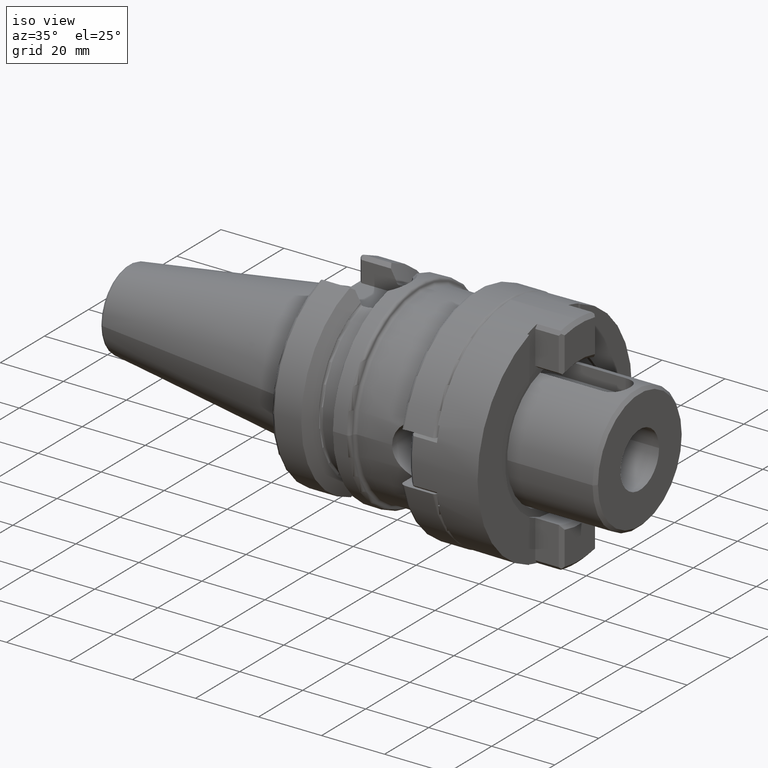
[diagram: clean part render]
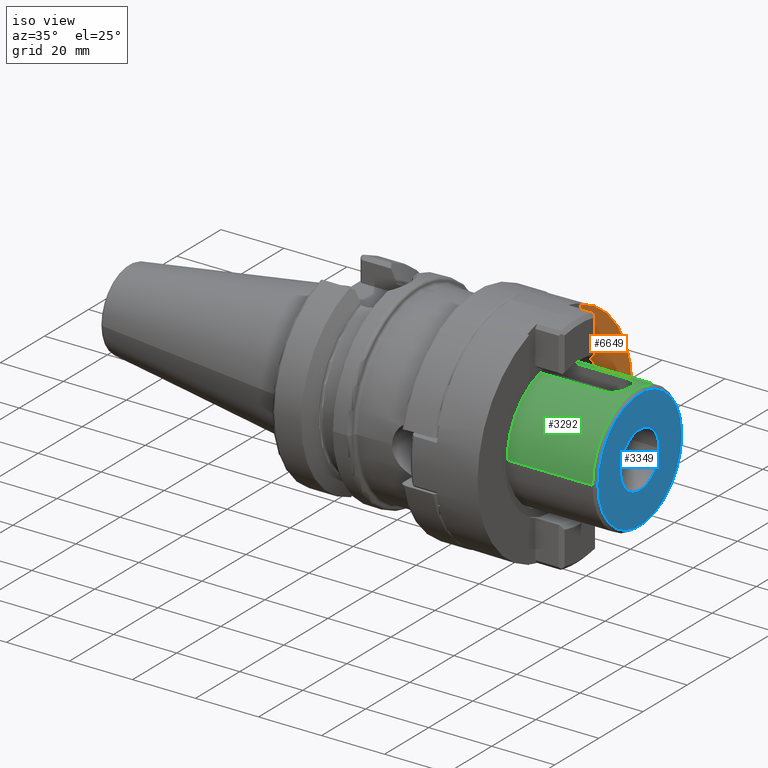
[diagram: same view with three faces highlighted in distinct colors, each labeled with its STEP entity id]
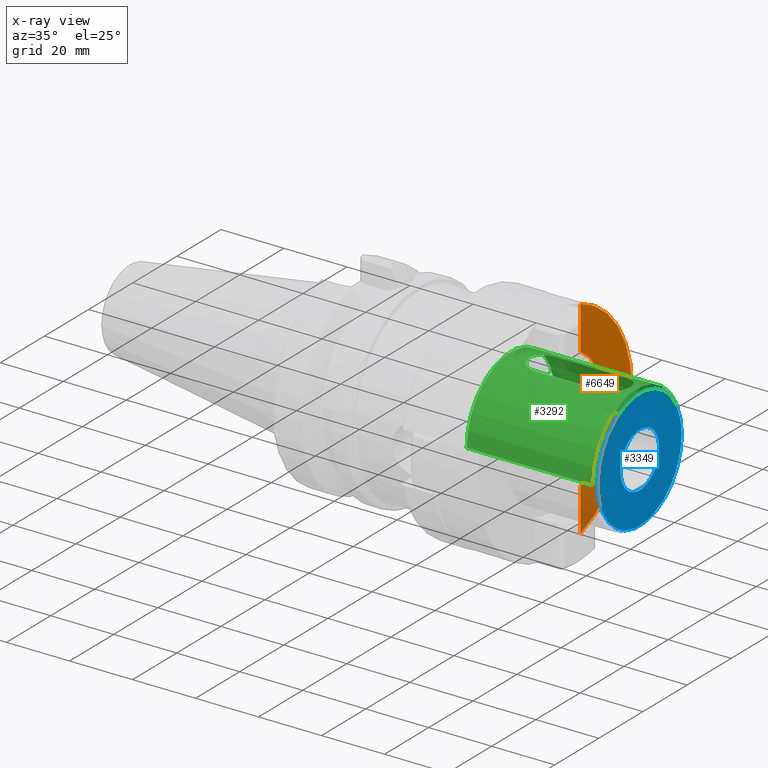
[diagram: x-ray of the same camera — body ghosted, the three highlighted faces saturated]
A machine part, iso view with three faces highlighted in distinct colors.
The next image is the same camera in x-ray (body ghosted, the three faces saturated) — at least one of them is partly hidden behind the body in this view.
Their STEP definitions:

[orange] entity #6649 — the highlighted planar face has unit normal (-1, 0, 0).
#4499=CARTESIAN_POINT('',(0.E0,0.E0,0.E0));
#4500=DIRECTION('',(0.E0,-1.E0,0.E0));
#4501=DIRECTION('',(8.575903580511E-1,0.E0,5.143333333333E-1));
#4502=AXIS2_PLACEMENT_3D('',#4499,#4500,#4501);
#4604=CARTESIAN_POINT('',(0.E0,0.E0,0.E0));
#4605=DIRECTION('',(0.E0,-1.E0,0.E0));
#4606=DIRECTION('',(9.437559541642E-1,0.E0,3.306428571429E-1));
#4607=AXIS2_PLACEMENT_3D('',#4604,#4605,#4606);
#5203=DIRECTION('',(1.E0,0.E0,0.E0));
#5204=VECTOR('',#5203,1.373567533960E1);
#5205=CARTESIAN_POINT('',(-3.303145839575E1,0.E0,1.15725E1));
#5206=LINE('',#5205,#5204);
#5207=DIRECTION('',(1.E0,0.E0,0.E0));
#5208=VECTOR('',#5207,1.373567533960E1);
#5209=CARTESIAN_POINT('',(1.929578305615E1,0.E0,1.15725E1));
#5210=LINE('',#5209,#5208);
#5275=CARTESIAN_POINT('',(-3.303145839575E1,0.E0,1.15725E1));
#5276=CARTESIAN_POINT('',(-1.929578305615E1,0.E0,1.15725E1));
#5277=VERTEX_POINT('',#5275);
#5278=VERTEX_POINT('',#5276);
#5279=CARTESIAN_POINT('',(1.929578305615E1,0.E0,1.15725E1));
#5280=CARTESIAN_POINT('',(3.303145839575E1,0.E0,1.15725E1));
#5281=VERTEX_POINT('',#5279);
#5282=VERTEX_POINT('',#5280);
#6638=CARTESIAN_POINT('',(-4.2E1,0.E0,1.15725E1));
#6639=DIRECTION('',(0.E0,1.E0,0.E0));
#6640=DIRECTION('',(0.E0,0.E0,1.E0));
#6641=AXIS2_PLACEMENT_3D('',#6638,#6639,#6640);
#6642=PLANE('',#6641);
#6643=ORIENTED_EDGE('',*,*,#6619,.F.);
#6644=ORIENTED_EDGE('',*,*,#5863,.F.);
#6645=ORIENTED_EDGE('',*,*,#6632,.F.);
#6646=ORIENTED_EDGE('',*,*,#5766,.T.);
#6647=EDGE_LOOP('',(#6643,#6644,#6645,#6646));
#6648=FACE_OUTER_BOUND('',#6647,.F.);
#6649=ADVANCED_FACE('',(#6648),#6642,.F.);
#4503=CIRCLE('',#4502,2.25E1);
#4608=CIRCLE('',#4607,3.5E1);
#5766=EDGE_CURVE('',#5281,#5278,#4503,.T.);
#5863=EDGE_CURVE('',#5282,#5277,#4608,.T.);
#6619=EDGE_CURVE('',#5277,#5278,#5206,.T.);
#6632=EDGE_CURVE('',#5281,#5282,#5210,.T.);

[blue] entity #3349 — the highlighted planar face has unit normal (1, 0, 0).
#1137=CARTESIAN_POINT('',(9.7E1,0.E0,0.E0));
#1138=DIRECTION('',(-1.E0,0.E0,0.E0));
#1139=DIRECTION('',(0.E0,1.E0,0.E0));
#1140=AXIS2_PLACEMENT_3D('',#1137,#1138,#1139);
#1142=CARTESIAN_POINT('',(9.7E1,0.E0,0.E0));
#1143=DIRECTION('',(-1.E0,0.E0,0.E0));
#1144=DIRECTION('',(0.E0,-1.E0,0.E0));
#1145=AXIS2_PLACEMENT_3D('',#1142,#1143,#1144);
#1147=CARTESIAN_POINT('',(9.7E1,0.E0,0.E0));
#1148=DIRECTION('',(1.E0,0.E0,0.E0));
#1149=DIRECTION('',(0.E0,-1.E0,0.E0));
#1150=AXIS2_PLACEMENT_3D('',#1147,#1148,#1149);
#1152=CARTESIAN_POINT('',(9.7E1,0.E0,0.E0));
#1153=DIRECTION('',(1.E0,0.E0,0.E0));
#1154=DIRECTION('',(0.E0,1.E0,0.E0));
#1155=AXIS2_PLACEMENT_3D('',#1152,#1153,#1154);
#1855=CARTESIAN_POINT('',(9.7E1,1.9E1,0.E0));
#1856=CARTESIAN_POINT('',(9.7E1,-1.9E1,0.E0));
#1857=VERTEX_POINT('',#1855);
#1858=VERTEX_POINT('',#1856);
#1865=CARTESIAN_POINT('',(9.7E1,-8.75E0,0.E0));
#1866=CARTESIAN_POINT('',(9.7E1,8.75E0,0.E0));
#1867=VERTEX_POINT('',#1865);
#1868=VERTEX_POINT('',#1866);
#3334=CARTESIAN_POINT('',(9.7E1,0.E0,0.E0));
#3335=DIRECTION('',(1.E0,0.E0,0.E0));
#3336=DIRECTION('',(0.E0,-1.E0,0.E0));
#3337=AXIS2_PLACEMENT_3D('',#3334,#3335,#3336);
#3338=PLANE('',#3337);
#3339=ORIENTED_EDGE('',*,*,#3316,.T.);
#3340=ORIENTED_EDGE('',*,*,#3301,.T.);
#3341=EDGE_LOOP('',(#3339,#3340));
#3342=FACE_OUTER_BOUND('',#3341,.F.);
#3344=ORIENTED_EDGE('',*,*,#3343,.T.);
#3346=ORIENTED_EDGE('',*,*,#3345,.T.);
#3347=EDGE_LOOP('',(#3344,#3346));
#3348=FACE_BOUND('',#3347,.F.);
#3349=ADVANCED_FACE('',(#3342,#3348),#3338,.T.);
#1141=CIRCLE('',#1140,1.9E1);
#1146=CIRCLE('',#1145,1.9E1);
#1151=CIRCLE('',#1150,8.75E0);
#1156=CIRCLE('',#1155,8.75E0);
#3301=EDGE_CURVE('',#1858,#1857,#1146,.T.);
#3316=EDGE_CURVE('',#1857,#1858,#1141,.T.);
#3343=EDGE_CURVE('',#1867,#1868,#1151,.T.);
#3345=EDGE_CURVE('',#1868,#1867,#1156,.T.);

[green] entity #3292 — the highlighted cylindrical surface (partial cylindrical patch) has radius 20 mm, axis along (1, 0, 0).
#1027=CARTESIAN_POINT('',(5.6E1,0.E0,0.E0));
#1028=DIRECTION('',(1.E0,0.E0,0.E0));
#1029=DIRECTION('',(0.E0,1.E0,0.E0));
#1030=AXIS2_PLACEMENT_3D('',#1027,#1028,#1029);
#1061=CARTESIAN_POINT('',(9.6E1,0.E0,0.E0));
#1062=DIRECTION('',(-1.E0,0.E0,0.E0));
#1063=DIRECTION('',(0.E0,-1.E0,0.E0));
#1064=AXIS2_PLACEMENT_3D('',#1061,#1062,#1063);
#1066=CARTESIAN_POINT('',(6.7E1,5.E0,1.936491673104E1));
#1067=CARTESIAN_POINT('',(6.669339776053E1,5.E0,1.936491673104E1));
#1068=CARTESIAN_POINT('',(6.608981059196E1,4.944604060284E0,1.937934696347E1));
#1069=CARTESIAN_POINT('',(6.520066599744E1,4.695632531075E0,1.944192106360E1));
#1070=CARTESIAN_POINT('',(6.436560243861E1,4.283776023734E0,1.953796742936E1));
#1071=CARTESIAN_POINT('',(6.361464145355E1,3.719406695050E0,1.965462147376E1));
#1072=CARTESIAN_POINT('',(6.298126980118E1,3.023719864372E0,1.977496883355E1));
#1073=CARTESIAN_POINT('',(6.249118320644E1,2.226845476524E0,1.988157514972E1));
#1074=CARTESIAN_POINT('',(6.215966655954E1,1.361564256057E0,1.996022909040E1));
#1075=CARTESIAN_POINT('',(6.199305891660E1,4.579231715179E-1,2.000171832744E1));
#1076=CARTESIAN_POINT('',(6.199305889529E1,-4.579229606090E-1,
2.000171833261E1));
#1077=CARTESIAN_POINT('',(6.215966651176E1,-1.361564090614E0,1.996022910268E1));
#1078=CARTESIAN_POINT('',(6.249118319526E1,-2.226845555059E0,1.988157514935E1));
#1079=CARTESIAN_POINT('',(6.298127031049E1,-3.023720558963E0,1.977496872875E1));
#1080=CARTESIAN_POINT('',(6.361464184111E1,-3.719407044854E0,1.965462140565E1));
#1081=CARTESIAN_POINT('',(6.436560328483E1,-4.283776574995E0,1.953796730899E1));
#1082=CARTESIAN_POINT('',(6.520066662198E1,-4.695632681919E0,1.944192102360E1));
#1083=CARTESIAN_POINT('',(6.608980973978E1,-4.944603861393E0,1.937934701441E1));
#1084=CARTESIAN_POINT('',(6.669339736297E1,-5.E0,1.936491673104E1));
#1085=CARTESIAN_POINT('',(6.7E1,-5.E0,1.936491673104E1));
#1087=DIRECTION('',(1.E0,0.E0,0.E0));
#1088=VECTOR('',#1087,2.2E1);
#1089=CARTESIAN_POINT('',(6.7E1,-5.E0,1.936491673104E1));
#1090=LINE('',#1089,#1088);
#1091=CARTESIAN_POINT('',(8.9E1,-5.E0,1.936491673104E1));
#1092=CARTESIAN_POINT('',(8.930660215932E1,-5.E0,1.936491673104E1));
#1093=CARTESIAN_POINT('',(8.991018920116E1,-4.944604090552E0,1.937934695558E1));
#1094=CARTESIAN_POINT('',(9.079933373293E1,-4.695632630725E0,1.944192103906E1));
#1095=CARTESIAN_POINT('',(9.163439727635E1,-4.283776197115E0,1.953796739083E1));
#1096=CARTESIAN_POINT('',(9.238535828079E1,-3.719406932873E0,1.965462142775E1));
#1097=CARTESIAN_POINT('',(9.301872995706E1,-3.023720186533E0,1.977496878392E1));
#1098=CARTESIAN_POINT('',(9.350881662868E1,-2.226845806847E0,1.988157511185E1));
#1099=CARTESIAN_POINT('',(9.384033333248E1,-1.361564654614E0,1.996022906388E1));
#1100=CARTESIAN_POINT('',(9.400694109578E1,-4.579233225497E-1,
2.000171833044E1));
#1101=CARTESIAN_POINT('',(9.400694109397E1,4.579232072791E-1,2.000171832989E1));
#1102=CARTESIAN_POINT('',(9.384033342305E1,1.361564301172E0,1.996022908673E1));
#1103=CARTESIAN_POINT('',(9.350881672430E1,2.226845716159E0,1.988157513099E1));
#1104=CARTESIAN_POINT('',(9.301872958822E1,3.023720691846E0,1.977496870801E1));
#1105=CARTESIAN_POINT('',(9.238535804920E1,3.719407143088E0,1.965462138669E1));
#1106=CARTESIAN_POINT('',(9.163439660479E1,4.283776641246E0,1.953796729418E1));
#1107=CARTESIAN_POINT('',(9.079933328523E1,4.695632714978E0,1.944192101543E1));
#1108=CARTESIAN_POINT('',(8.991019020574E1,4.944603868471E0,1.937934701255E1));
#1109=CARTESIAN_POINT('',(8.930660261710E1,5.E0,1.936491673104E1));
#1110=CARTESIAN_POINT('',(8.9E1,5.E0,1.936491673104E1));
#1112=DIRECTION('',(1.E0,0.E0,0.E0));
#1113=VECTOR('',#1112,2.2E1);
#1114=CARTESIAN_POINT('',(6.7E1,5.E0,1.936491673104E1));
#1115=LINE('',#1114,#1113);
#1129=DIRECTION('',(-1.E0,1.440447761068E-12,8.509743358551E-12));
#1130=VECTOR('',#1129,4.000000000006E1);
#1131=CARTESIAN_POINT('',(9.600000000006E1,1.999999999994E1,
-3.403881014801E-10));
#1132=LINE('',#1131,#1130);
#1133=DIRECTION('',(-1.E0,-1.440447761068E-12,-8.509783561617E-12));
#1134=VECTOR('',#1133,4.000000000006E1);
#1135=CARTESIAN_POINT('',(9.600000000006E1,-1.999999999994E1,
3.403897096028E-10));
#1136=LINE('',#1135,#1134);
#1847=CARTESIAN_POINT('',(5.6E1,2.E1,0.E0));
#1848=CARTESIAN_POINT('',(5.6E1,-2.E1,0.E0));
#1849=VERTEX_POINT('',#1847);
#1850=VERTEX_POINT('',#1848);
#1851=CARTESIAN_POINT('',(9.6E1,2.E1,0.E0));
#1852=CARTESIAN_POINT('',(9.6E1,-2.E1,0.E0));
#1853=VERTEX_POINT('',#1851);
#1854=VERTEX_POINT('',#1852);
#1917=VERTEX_POINT('',#1066);
#1918=VERTEX_POINT('',#1085);
#1919=CARTESIAN_POINT('',(8.9E1,-5.E0,1.936491673104E1));
#1920=VERTEX_POINT('',#1919);
#1921=VERTEX_POINT('',#1110);
#3268=CARTESIAN_POINT('',(2.35E1,0.E0,0.E0));
#3269=DIRECTION('',(1.E0,0.E0,0.E0));
#3270=DIRECTION('',(0.E0,-1.E0,0.E0));
#3271=AXIS2_PLACEMENT_3D('',#3268,#3269,#3270);
#3272=CYLINDRICAL_SURFACE('',#3271,2.E1);
#3274=ORIENTED_EDGE('',*,*,#3273,.F.);
#3276=ORIENTED_EDGE('',*,*,#3275,.T.);
#3277=ORIENTED_EDGE('',*,*,#3261,.F.);
#3279=ORIENTED_EDGE('',*,*,#3278,.F.);
#3280=EDGE_LOOP('',(#3274,#3276,#3277,#3279));
#3281=FACE_OUTER_BOUND('',#3280,.F.);
#3283=ORIENTED_EDGE('',*,*,#3282,.T.);
#3285=ORIENTED_EDGE('',*,*,#3284,.T.);
#3287=ORIENTED_EDGE('',*,*,#3286,.T.);
#3289=ORIENTED_EDGE('',*,*,#3288,.F.);
#3290=EDGE_LOOP('',(#3283,#3285,#3287,#3289));
#3291=FACE_BOUND('',#3290,.F.);
#3292=ADVANCED_FACE('',(#3281,#3291),#3272,.T.);
#1031=CIRCLE('',#1030,2.E1);
#1065=CIRCLE('',#1064,2.E1);
#1086=B_SPLINE_CURVE_WITH_KNOTS('',3,(#1066,#1067,#1068,#1069,#1070,#1071,#1072,
#1073,#1074,#1075,#1076,#1077,#1078,#1079,#1080,#1081,#1082,#1083,#1084,#1085),
.UNSPECIFIED.,.F.,.F.,(4,1,1,1,1,1,1,1,1,1,1,1,1,1,1,1,1,4),(0.E0,
5.882352941176E-2,1.176470588235E-1,1.764705882353E-1,2.352941176471E-1,
2.941176470588E-1,3.529411764706E-1,4.117647058824E-1,4.705882352941E-1,
5.294117647059E-1,5.882352941176E-1,6.470588235294E-1,7.058823529412E-1,
7.647058823529E-1,8.235294117647E-1,8.823529411765E-1,9.411764705882E-1,1.E0),
.UNSPECIFIED.);
#1111=B_SPLINE_CURVE_WITH_KNOTS('',3,(#1091,#1092,#1093,#1094,#1095,#1096,#1097,
#1098,#1099,#1100,#1101,#1102,#1103,#1104,#1105,#1106,#1107,#1108,#1109,#1110),
.UNSPECIFIED.,.F.,.F.,(4,1,1,1,1,1,1,1,1,1,1,1,1,1,1,1,1,4),(0.E0,
5.882352941176E-2,1.176470588235E-1,1.764705882353E-1,2.352941176471E-1,
2.941176470588E-1,3.529411764706E-1,4.117647058824E-1,4.705882352941E-1,
5.294117647059E-1,5.882352941176E-1,6.470588235294E-1,7.058823529412E-1,
7.647058823529E-1,8.235294117647E-1,8.823529411765E-1,9.411764705882E-1,1.E0),
.UNSPECIFIED.);
#3261=EDGE_CURVE('',#1849,#1850,#1031,.T.);
#3273=EDGE_CURVE('',#1854,#1853,#1065,.T.);
#3275=EDGE_CURVE('',#1854,#1850,#1136,.T.);
#3278=EDGE_CURVE('',#1853,#1849,#1132,.T.);
#3282=EDGE_CURVE('',#1917,#1918,#1086,.T.);
#3284=EDGE_CURVE('',#1918,#1920,#1090,.T.);
#3286=EDGE_CURVE('',#1920,#1921,#1111,.T.);
#3288=EDGE_CURVE('',#1917,#1921,#1115,.T.);